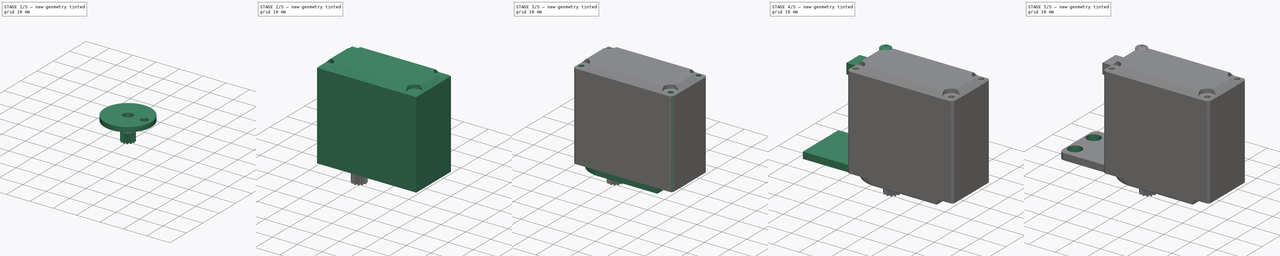
[diagram: build sequence overview — one tinted view per stage of 5, left to right]
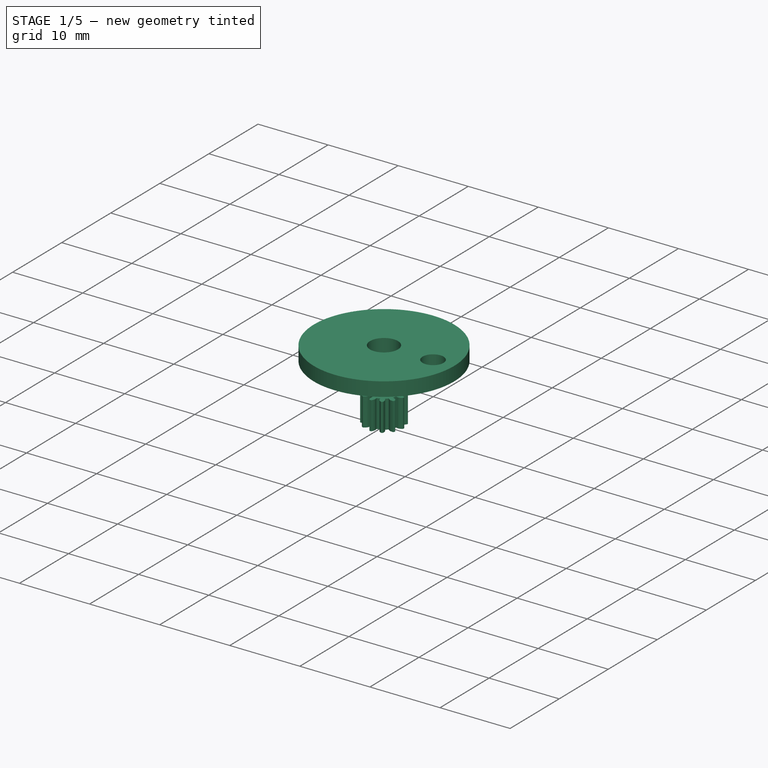
[diagram: stage 1 of 5 — iso view after this stage's code; geometry added in this stage tinted green]
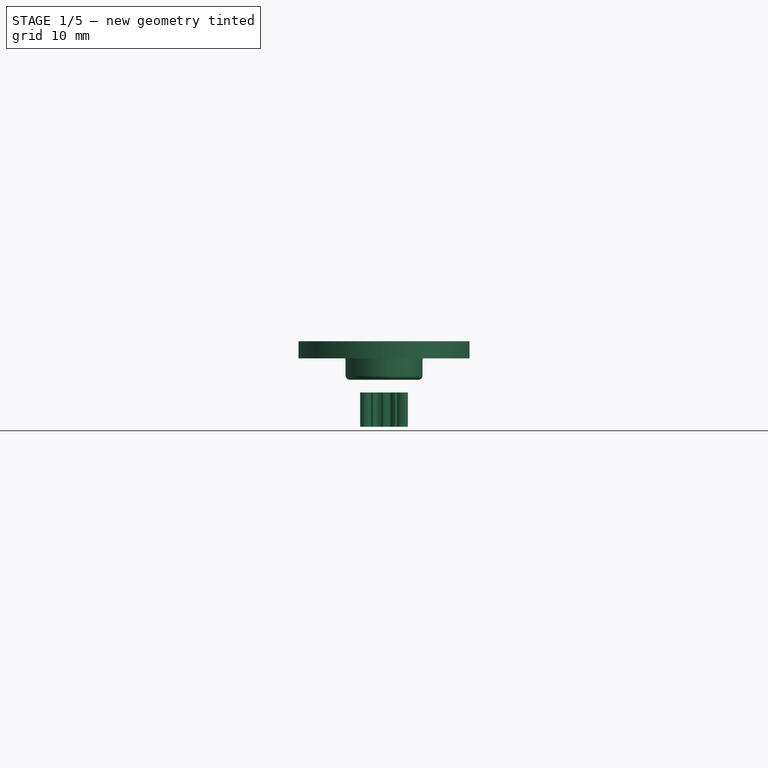
[diagram: stage 1 of 5 — front view after this stage's code; geometry added in this stage tinted green]
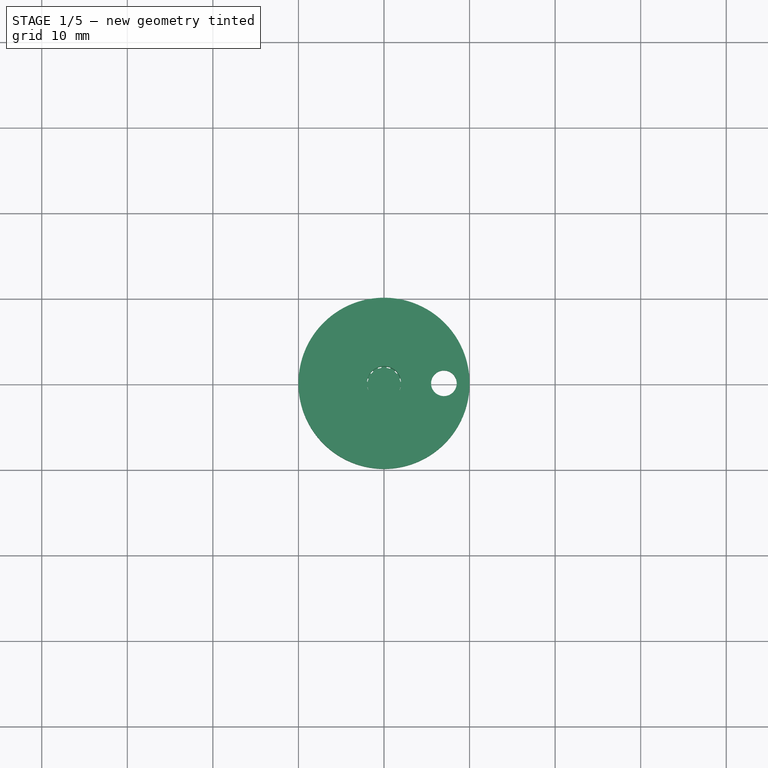
[diagram: stage 1 of 5 — top view after this stage's code; geometry added in this stage tinted green]
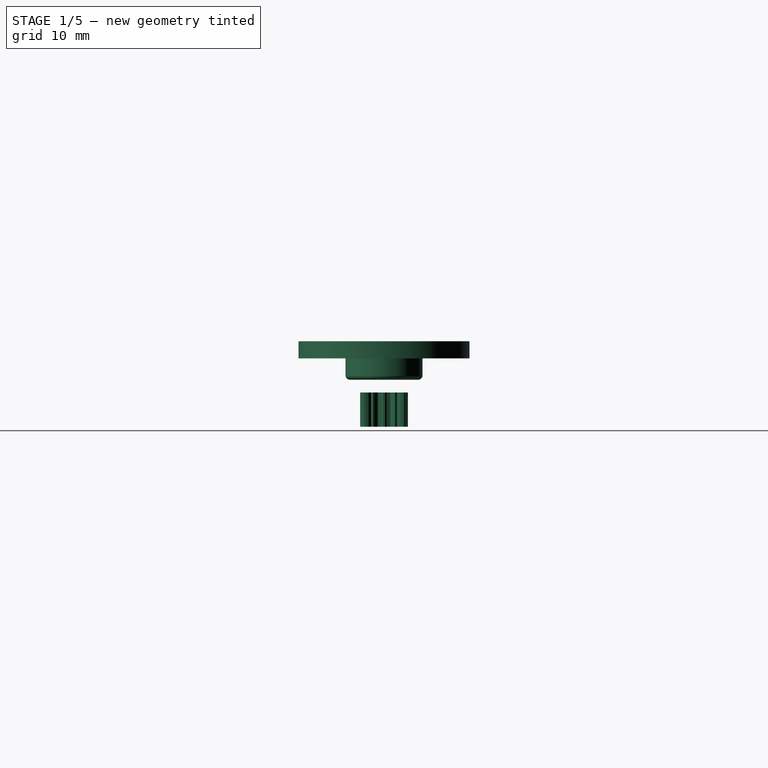
[diagram: stage 1 of 5 — right view after this stage's code; geometry added in this stage tinted green]
FCSTD DOCUMENT  (FreeCAD 0.19R24367 (Git))
Label: Servo
License: All rights reserved
LicenseURL: http://en.wikipedia.org/wiki/All_rights_reserved
objects: Sketcher::SketchObject×15, PartDesign::CoordinateSystem×13, PartDesign::Fillet×12, PartDesign::Pad×10, App::Link×6, PartDesign::Chamfer×5, PartDesign::Pocket×5, App::Part×4, PartDesign::Body×3, App::DocumentObjectGroup×3, Part::FeaturePython×2, PartDesign::SubShapeBinder×2, App::FeaturePython×1, PartDesign::PolarPattern×1, PartDesign::Mirrored×1
note: 101 computed .brp shape members not serialized (recipe doc carries the construction recipe); baked Part::Feature solids carry a one-line shape summary decoded from their .brp

FEATURE [Part::FeaturePython] involutegear  # WARN: FeaturePython — macro-defined, semantics opaque (R4)
  AttacherType = Attacher::AttachEngine3D
  Placement = pos=(0,0,-8) rot=(0,0,1;0rad)
  backlash = 0
  beta = 0
  clearance = 0.15
  da = 5.6
  df = 3.88
  double_helix = false
  dw = 4.8
  head = 0
  height = 4
  module = 0.4
  numpoints = 6
  pressure_angle = 20
  properties_from_tool = false
  reversed_backlash = false
  shift = 0
  simple = false
  teeth = 12
  transverse_pitch = 1.25664
  undercut = false
  version = 0.0.3
FEATURE [PartDesign::CoordinateSystem] LCS_Origin
  AttacherType = Attacher::AttachEngine3D
  MapMode = 2
  Support = -> [X_Axis003]
FEATURE [App::FeaturePython] Variables  # WARN: FeaturePython — macro-defined, semantics opaque (R4)
  Type = App::PropertyContainer
FEATURE [App::DocumentObjectGroup] Constraints
FEATURE [App::DocumentObjectGroup] Configurations
FEATURE [PartDesign::CoordinateSystem] LCS_0003
  AttacherType = Attacher::AttachEngine3D
  MapMode = 2
  Support = -> [X_Axis004]
FEATURE [PartDesign::CoordinateSystem] LCS_0004
  AttacherType = Attacher::AttachEngine3D
  MapMode = 2
  Support = -> [X_Axis005]
FEATURE [Sketcher::SketchObject] Sketch011
  FullyConstrained = true
  MapMode = 5
  Support = -> [XY_Plane005]
  sketch-geometry (1):
    g0: Circle CenterX=0 CenterY=0 CenterZ=0 NormalX=0 NormalY=0 NormalZ=1 AngleXU=0 Radius=10
  constraints (2):
    c: Coincident(g0,g-1)
    c: Diameter(g0) = 20
FEATURE [PartDesign::Pad] Pad008
  Direction = (1,1,1)
  Length = 2
  Length2 = 100
  Profile = -> Sketch011
  Type = 0
FEATURE [Sketcher::SketchObject] Sketch012
  FullyConstrained = true
  MapMode = 5
  Placement = pos=(0,0,0) rot=(1,0,0;3.14159rad)
  Support = -> [Pad008]
  sketch-geometry (1):
    g0: Circle CenterX=0 CenterY=0 CenterZ=0 NormalX=0 NormalY=0 NormalZ=1 AngleXU=0 Radius=4.5
  constraints (2):
    c: Coincident(g0,g-1)
    c: Diameter(g0) = 9
FEATURE [PartDesign::Pad] Pad009
  BaseFeature = -> Pad008
  Direction = (1,1,1)
  Length = 2.5
  Length2 = 100
  Profile = -> Sketch012
  Type = 0
FEATURE [Sketcher::SketchObject] Sketch013
  FullyConstrained = true
  MapMode = 5
  Placement = pos=(0,0,-2.5) rot=(1,0,0;3.14159rad)
  Support = -> [Pad009]
  sketch-geometry (1):
    g0: Circle CenterX=0 CenterY=0 CenterZ=0 NormalX=0 NormalY=0 NormalZ=1 AngleXU=0 Radius=2
  constraints (2):
    c: Coincident(g0,g-1)
    c: Diameter(g0) = 4
FEATURE [PartDesign::Pocket] Pocket003
  BaseFeature = -> Pad009
  Length = 5
  Length2 = 100
  Profile = -> Sketch013
  Type = 1
FEATURE [PartDesign::Chamfer] Chamfer004
  Angle = 45
  Base = -> Pocket003 [Edge8]
  BaseFeature = -> Pocket003
  ChamferType = 0
  FlipDirection = false
  Size = 0.5
  Size2 = 1
  SupportTransform = false
FEATURE [PartDesign::Fillet] Fillet011
  Base = -> Chamfer004 [Edge7]
  BaseFeature = -> Chamfer004
  Radius = 0.5
  SupportTransform = false
FEATURE [Sketcher::SketchObject] Sketch014
  FullyConstrained = true
  MapMode = 5
  Placement = pos=(0,0,0) rot=(1,0,0;3.14159rad)
  Support = -> [Fillet011]
  sketch-geometry (2):
    g0: Circle CenterX=0 CenterY=0 CenterZ=0 NormalX=0 NormalY=0 NormalZ=1 AngleXU=0 Radius=7
    g1: Circle CenterX=7 CenterY=0 CenterZ=0 NormalX=0 NormalY=0 NormalZ=1 AngleXU=0 Radius=1.5
  constraints (5):
    c: Coincident(g0,g-1)
    c: Diameter(g0) = 14
    c: PointOnObject(g1,g0)
    c: Diameter(g1) = 3
    c: PointOnObject(g1,g-1)
FEATURE [PartDesign::Pocket] Pocket004
  BaseFeature = -> Fillet011
  Length = 5
  Length2 = 100
  Profile = -> Sketch014
  Type = 1
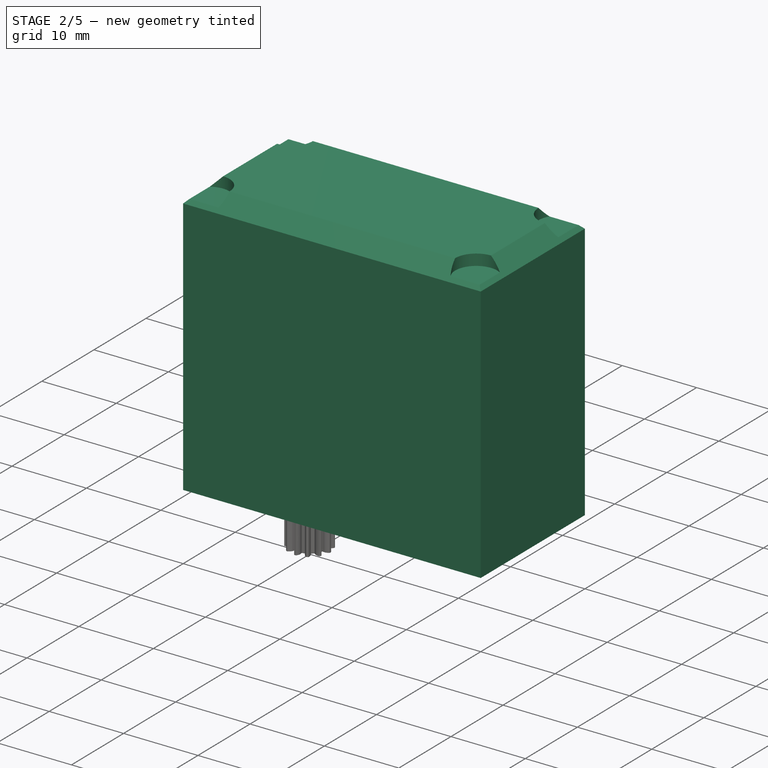
[diagram: stage 2 of 5 — iso view after this stage's code; geometry added in this stage tinted green]
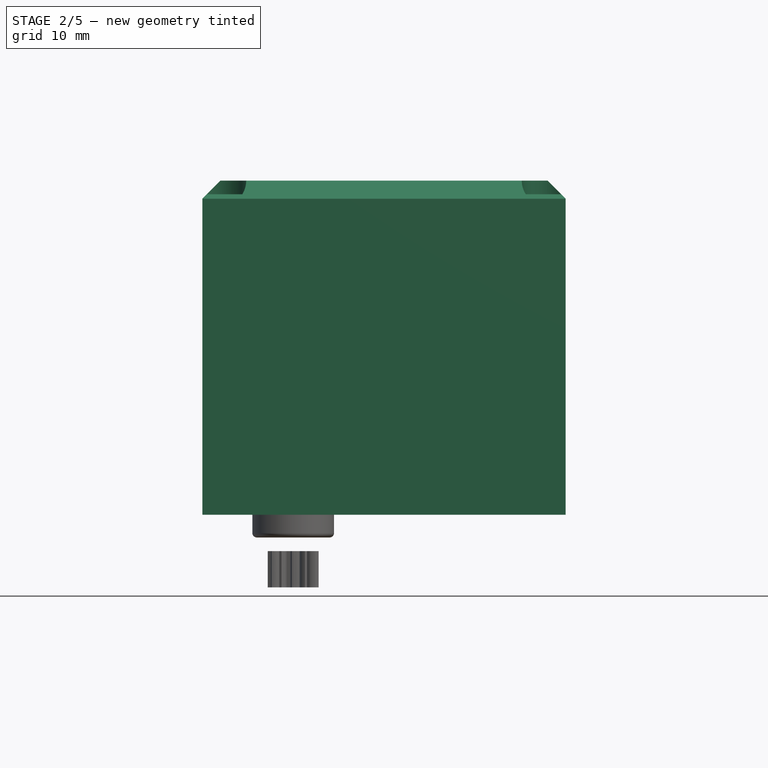
[diagram: stage 2 of 5 — front view after this stage's code; geometry added in this stage tinted green]
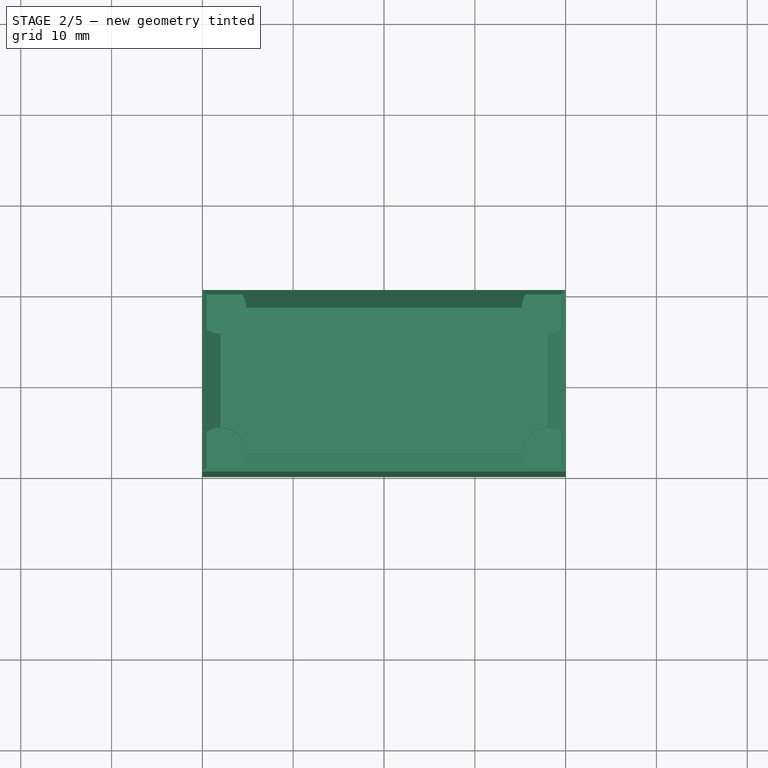
[diagram: stage 2 of 5 — top view after this stage's code; geometry added in this stage tinted green]
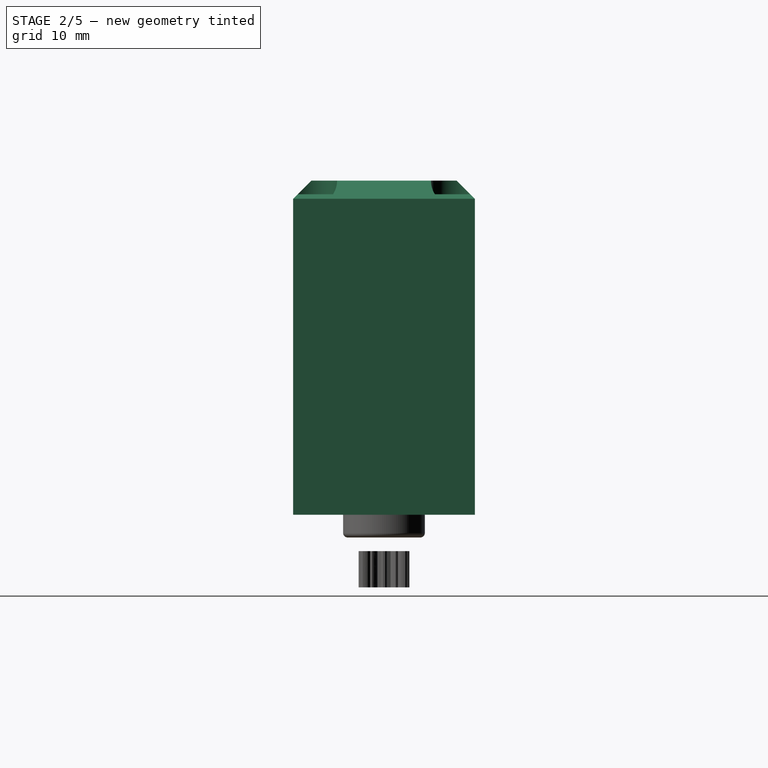
[diagram: stage 2 of 5 — right view after this stage's code; geometry added in this stage tinted green]
FEATURE [PartDesign::CoordinateSystem] LCS_0
  AttacherType = Attacher::AttachEngine3D
  MapMode = 2
  Support = -> [X_Axis]
FEATURE [PartDesign::CoordinateSystem] LCS_0001
  AttacherType = Attacher::AttachEngine3D
  MapMode = 2
  Support = -> [X_Axis001]
FEATURE [Sketcher::SketchObject] Sketch
  FullyConstrained = true
  MapMode = 5
  Support = -> [XY_Plane001]
  sketch-geometry (4):
    g0: LineSegment StartX=-10 StartY=10 StartZ=0 EndX=30 EndY=10 EndZ=0
    g1: LineSegment StartX=30 StartY=10 StartZ=0 EndX=30 EndY=-10 EndZ=0
    g2: LineSegment StartX=30 StartY=-10 StartZ=0 EndX=-10 EndY=-10 EndZ=0
    g3: LineSegment StartX=-10 StartY=-10 StartZ=0 EndX=-10 EndY=10 EndZ=0
  constraints (11):
    c: Coincident(g0,g1)
    c: Coincident(g1,g2)
    c: Coincident(g2,g3)
    c: Coincident(g3,g0)
    c: Horizontal(g0)
    c: Horizontal(g2)
    c: Vertical(g1)
    c: Symmetric(g0,g2,g-1)
    c: Distance(g0) = 40
    c: Distance(g1) = 20
    c: DistanceX(g0,g-1) = 10
FEATURE [PartDesign::Pad] Pad
  Direction = (1,1,1)
  Length = 36.8
  Length2 = 100
  Profile = -> Sketch
  Type = 0
FEATURE [PartDesign::Chamfer] Chamfer
  Angle = 45
  Base = -> Pad [Edge4]
  BaseFeature = -> Pad
  ChamferType = 0
  FlipDirection = false
  Size = 2
  Size2 = 1
  SupportTransform = false
FEATURE [PartDesign::Chamfer] Chamfer001
  Angle = 45
  Base = -> Chamfer [Edge15]
  BaseFeature = -> Chamfer
  ChamferType = 0
  FlipDirection = false
  Size = 2
  Size2 = 1
  SupportTransform = false
FEATURE [PartDesign::Chamfer] Chamfer002
  Angle = 45
  Base = -> Chamfer001 [Edge7]
  BaseFeature = -> Chamfer001
  ChamferType = 0
  FlipDirection = false
  Size = 2
  Size2 = 1
  SupportTransform = false
FEATURE [PartDesign::Chamfer] Chamfer003
  Angle = 45
  Base = -> Chamfer002 [Edge3]
  BaseFeature = -> Chamfer002
  ChamferType = 0
  FlipDirection = false
  Size = 2
  Size2 = 1
  SupportTransform = false
FEATURE [Sketcher::SketchObject] Sketch001
  ExternalGeometry = -> [Chamfer003]
  FullyConstrained = true
  MapMode = 5
  Placement = pos=(0,0,36.8) rot=(0,0,1;0rad)
  Support = -> [Chamfer003]
  sketch-geometry (4):
    g0: Circle CenterX=-8 CenterY=8 CenterZ=0 NormalX=0 NormalY=0 NormalZ=1 AngleXU=0 Radius=2.82843
    g1: Circle CenterX=28 CenterY=8 CenterZ=0 NormalX=0 NormalY=0 NormalZ=1 AngleXU=0 Radius=2.82843
    g2: Circle CenterX=28 CenterY=-8 CenterZ=0 NormalX=0 NormalY=0 NormalZ=1 AngleXU=0 Radius=2.82843
    g3: Circle CenterX=-8 CenterY=-8 CenterZ=0 NormalX=0 NormalY=0 NormalZ=1 AngleXU=0 Radius=2.82843
  constraints (8):
    c: Coincident(g0,g-3)
    c: PointOnObject(g-7,g0)
    c: Coincident(g1,g-6)
    c: Coincident(g2,g-5)
    c: Coincident(g3,g-4)
    c: PointOnObject(g-8,g1)
    c: PointOnObject(g-9,g2)
    c: PointOnObject(g-10,g3)
FEATURE [PartDesign::Pocket] Pocket
  BaseFeature = -> Chamfer003
  Length = 1.5
  Length2 = 100
  Profile = -> Sketch001
  Type = 0
FEATURE [PartDesign::PolarPattern] PolarPattern
  Angle = 360
  Axis = -> Sketch014 [N_Axis]
  BaseFeature = -> Pocket004
  Occurrences = 4
  Originals = -> [Pocket004]
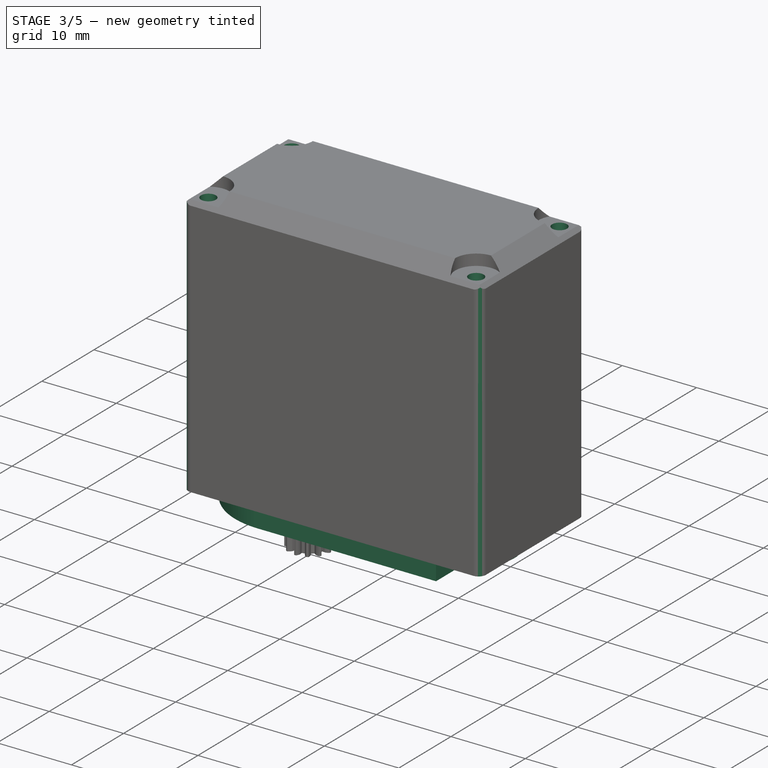
[diagram: stage 3 of 5 — iso view after this stage's code; geometry added in this stage tinted green]
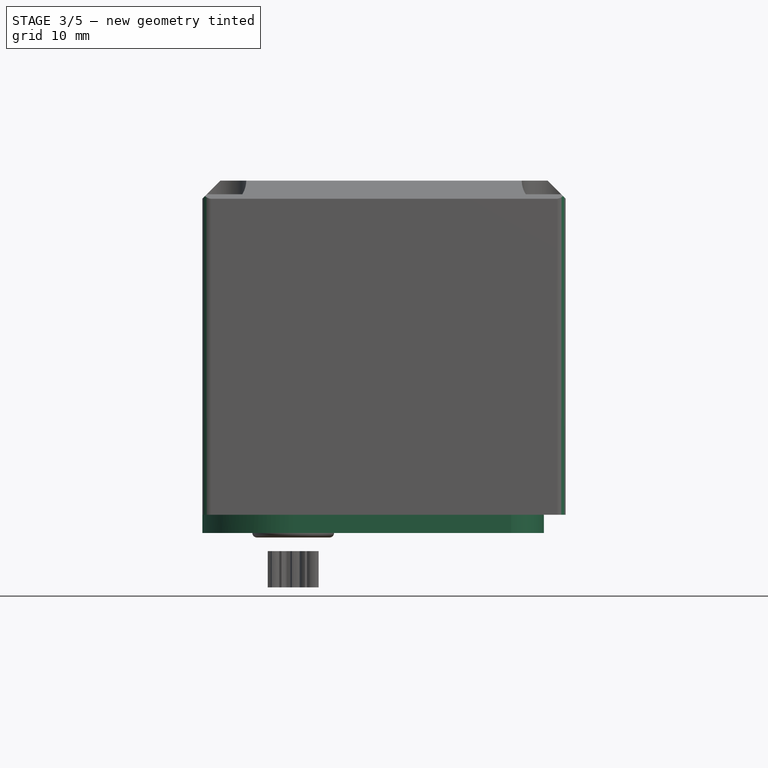
[diagram: stage 3 of 5 — front view after this stage's code; geometry added in this stage tinted green]
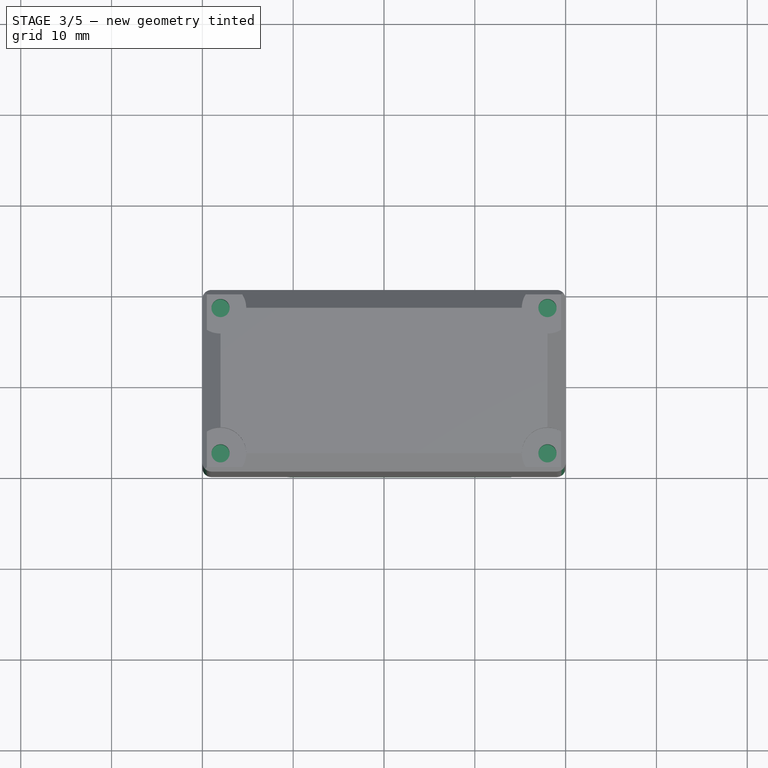
[diagram: stage 3 of 5 — top view after this stage's code; geometry added in this stage tinted green]
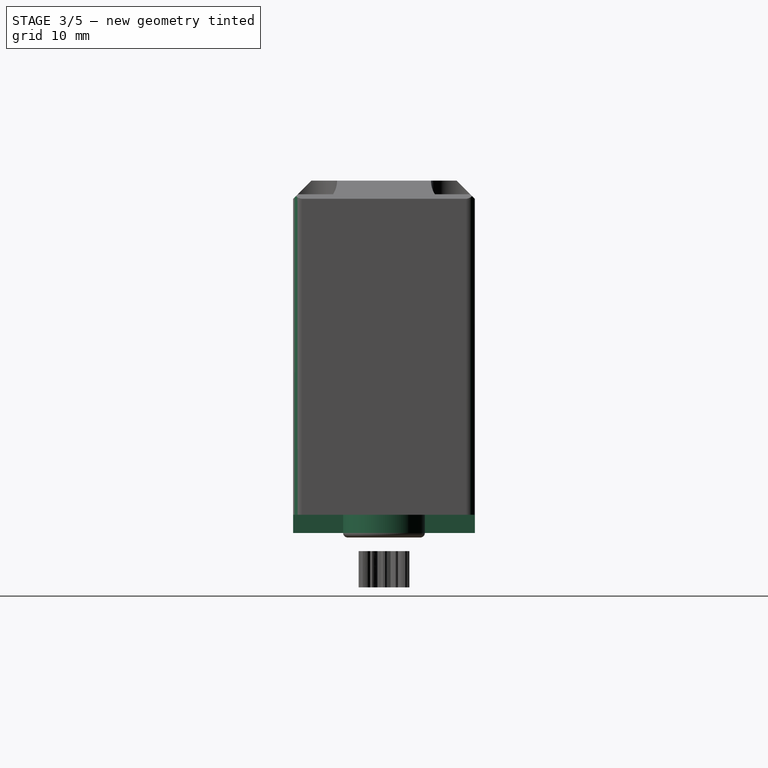
[diagram: stage 3 of 5 — right view after this stage's code; geometry added in this stage tinted green]
FEATURE [Sketcher::SketchObject] Sketch002
  ExternalGeometry = -> [Pocket]
  FullyConstrained = true
  MapMode = 5
  Placement = pos=(0,0,36.8) rot=(0,0,1;0rad)
  Support = -> [Pocket]
  sketch-geometry (8):
    g0: LineSegment StartX=-8 StartY=8 StartZ=0 EndX=28 EndY=8 EndZ=0
    g1: LineSegment StartX=28 StartY=8 StartZ=0 EndX=28 EndY=-8 EndZ=0
    g2: LineSegment StartX=28 StartY=-8 StartZ=0 EndX=-8 EndY=-8 EndZ=0
    g3: LineSegment StartX=-8 StartY=-8 StartZ=0 EndX=-8 EndY=8 EndZ=0
    g4: Circle CenterX=-8 CenterY=8 CenterZ=0 NormalX=0 NormalY=0 NormalZ=1 AngleXU=0 Radius=1
    g5: Circle CenterX=28 CenterY=8 CenterZ=0 NormalX=0 NormalY=0 NormalZ=1 AngleXU=0 Radius=1
    g6: Circle CenterX=-8 CenterY=-8 CenterZ=0 NormalX=0 NormalY=0 NormalZ=1 AngleXU=0 Radius=1
    g7: Circle CenterX=28 CenterY=-8 CenterZ=0 NormalX=0 NormalY=0 NormalZ=1 AngleXU=0 Radius=1
  constraints (19):
    c: Coincident(g0,g1)
    c: Coincident(g1,g2)
    c: Coincident(g2,g3)
    c: Coincident(g3,g0)
    c: Horizontal(g0)
    c: Horizontal(g2)
    c: Vertical(g1)
    c: Symmetric(g0,g2,g-1)
    c: DistanceY(g-3,g0) = 0
    c: DistanceX(g0,g-4) = 0
    c: DistanceX(g-5,g2) = 0
    c: Coincident(g4,g0)
    c: Coincident(g5,g0)
    c: Coincident(g6,g2)
    c: Coincident(g7,g1)
    c: Diameter(g4) = 2
    c: Diameter(g5) = 2
    c: Diameter(g6) = 2
    c: Diameter(g7) = 2
FEATURE [PartDesign::Pocket] Pocket001
  BaseFeature = -> Pocket
  Length = 5
  Length2 = 100
  Profile = -> Sketch002
  Type = 0
FEATURE [Sketcher::SketchObject] Sketch003
  FullyConstrained = true
  MapMode = 5
  Placement = pos=(0,0,0) rot=(1,0,0;3.14159rad)
  Support = -> [Pocket001]
  sketch-geometry (1):
    g0: Circle CenterX=0 CenterY=0 CenterZ=0 NormalX=0 NormalY=0 NormalZ=1 AngleXU=0 Radius=10
  constraints (2):
    c: Coincident(g0,g-1)
    c: Diameter(g0) = 20
FEATURE [PartDesign::Pad] Pad001
  BaseFeature = -> Pocket001
  Direction = (1,1,1)
  Length = 2
  Length2 = 100
  Profile = -> Sketch003
  Refine = true
  Type = 0
FEATURE [Sketcher::SketchObject] Sketch004
  FullyConstrained = true
  MapMode = 5
  Placement = pos=(0,0,0) rot=(1,0,0;3.14159rad)
  Support = -> [Pad001]
  sketch-geometry (4):
    g0: LineSegment StartX=0 StartY=10 StartZ=0 EndX=24 EndY=10 EndZ=0
    g1: LineSegment StartX=24 StartY=10 StartZ=0 EndX=24 EndY=-10 EndZ=0
    g2: LineSegment StartX=24 StartY=-10 StartZ=0 EndX=0 EndY=-10 EndZ=0
    g3: LineSegment StartX=0 StartY=-10 StartZ=0 EndX=0 EndY=10 EndZ=0
  constraints (11):
    c: Coincident(g0,g1)
    c: Coincident(g1,g2)
    c: Coincident(g2,g3)
    c: Coincident(g3,g0)
    c: Horizontal(g0)
    c: Horizontal(g2)
    c: Vertical(g1)
    c: Symmetric(g0,g2,g-1)
    c: Distance(g0) = 24
    c: Distance(g3) = 20
    c: DistanceX(g0,g-1) = 0
FEATURE [PartDesign::Pad] Pad002
  BaseFeature = -> Pad001
  Direction = (1,1,1)
  Length = 2
  Length2 = 100
  Profile = -> Sketch004
  Refine = true
  Type = 0
FEATURE [Sketcher::SketchObject] Sketch005
  ExternalGeometry = -> [Pad002]
  FullyConstrained = true
  MapMode = 5
  Placement = pos=(0,0,0) rot=(1,0,0;3.14159rad)
  Support = -> [Pad002]
  sketch-geometry (2):
    g0: ArcOfCircle CenterX=23 CenterY=0 CenterZ=0 NormalX=0 NormalY=0 NormalZ=1 AngleXU=0 Radius=4.60977 StartAngle=4.93106 EndAngle=7.63531
    g1: LineSegment StartX=24 StartY=4.5 StartZ=0 EndX=24 EndY=-4.5 EndZ=0
  constraints (7):
    c: PointOnObject(g0,g-1)
    c: PointOnObject(g0,g-3)
    c: PointOnObject(g0,g-3)
    c: DistanceY(g0,g0) = 9
    c: DistanceX(g0,g-3) = 1
    c: Coincident(g1,g0)
    c: Coincident(g1,g0)
FEATURE [PartDesign::Pad] Pad003
  BaseFeature = -> Pad002
  Direction = (1,1,1)
  Length = 2
  Length2 = 100
  Profile = -> Sketch005
  Refine = true
  Type = 0
FEATURE [PartDesign::Fillet] Fillet
  Base = -> Pad003 [Edge40]
  BaseFeature = -> Pad003
  Radius = 1
  SupportTransform = false
FEATURE [PartDesign::Fillet] Fillet001
  Base = -> Fillet [Edge44]
  BaseFeature = -> Fillet
  Radius = 1
  SupportTransform = false
FEATURE [PartDesign::Fillet] Fillet002
  Base = -> Fillet001 [Edge53]
  BaseFeature = -> Fillet001
  Radius = 1
  SupportTransform = false
FEATURE [PartDesign::Fillet] Fillet003
  Base = -> Fillet002 [Edge65]
  BaseFeature = -> Fillet002
  Radius = 1
  SupportTransform = false
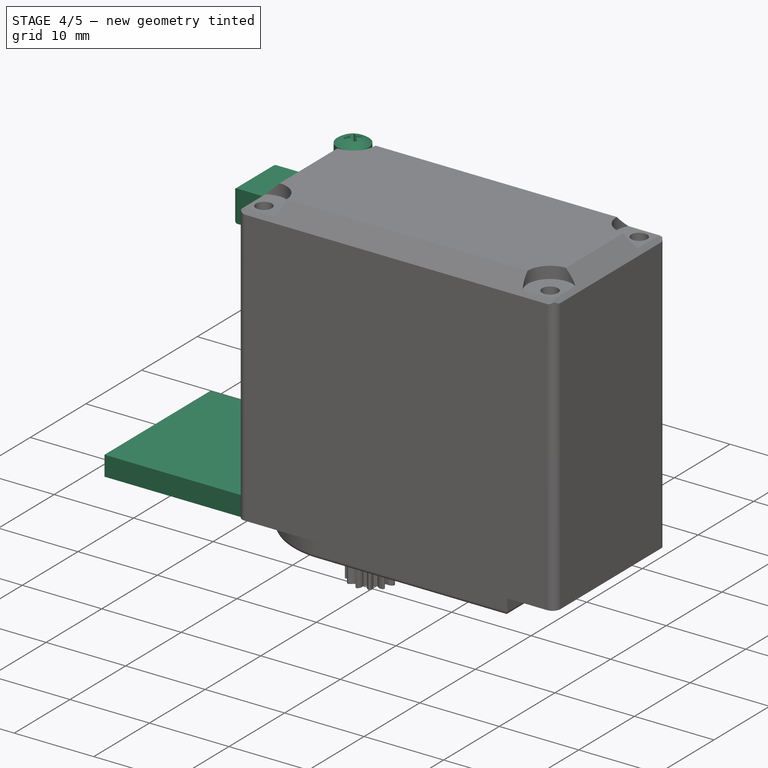
[diagram: stage 4 of 5 — iso view after this stage's code; geometry added in this stage tinted green]
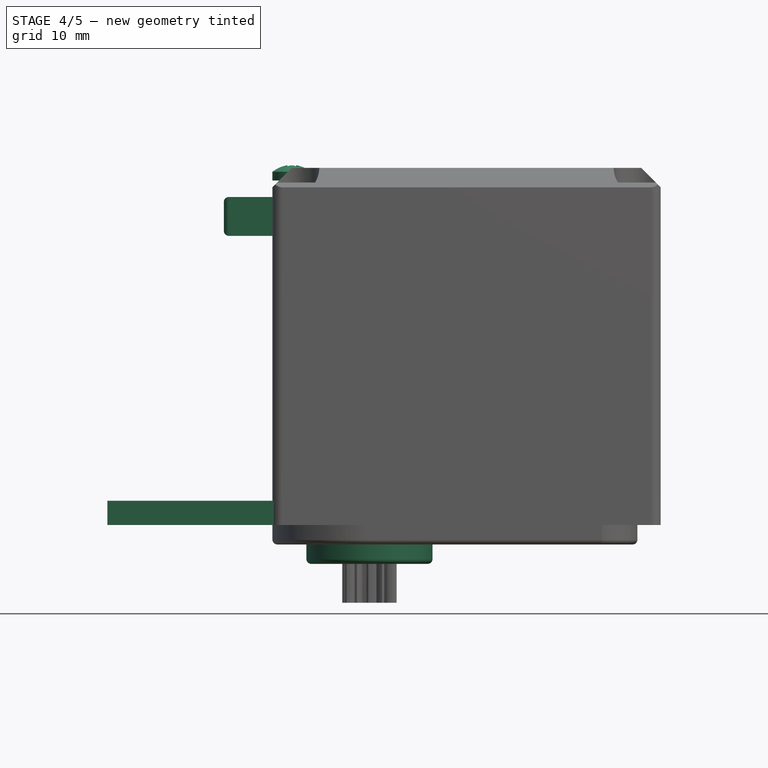
[diagram: stage 4 of 5 — front view after this stage's code; geometry added in this stage tinted green]
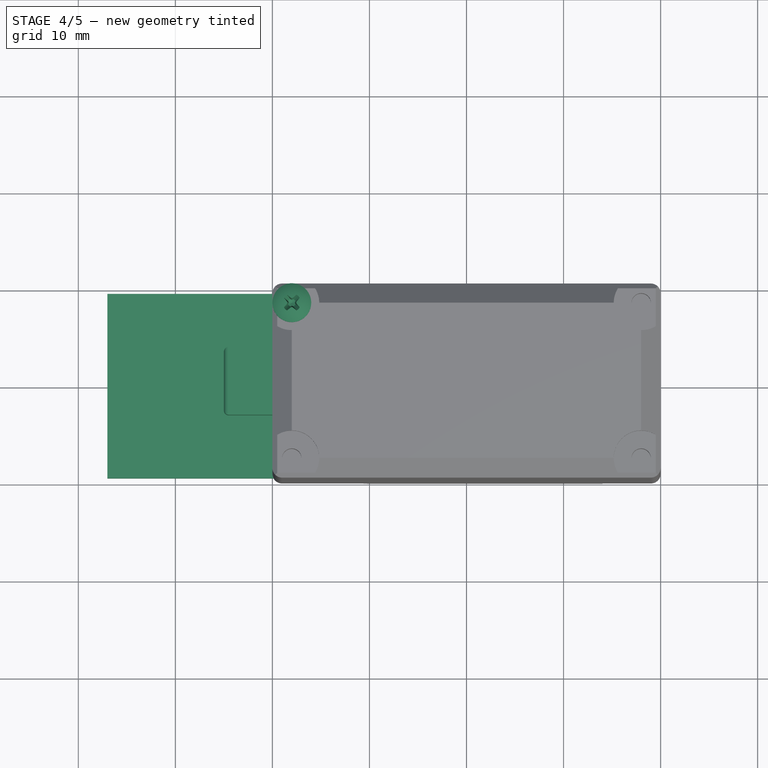
[diagram: stage 4 of 5 — top view after this stage's code; geometry added in this stage tinted green]
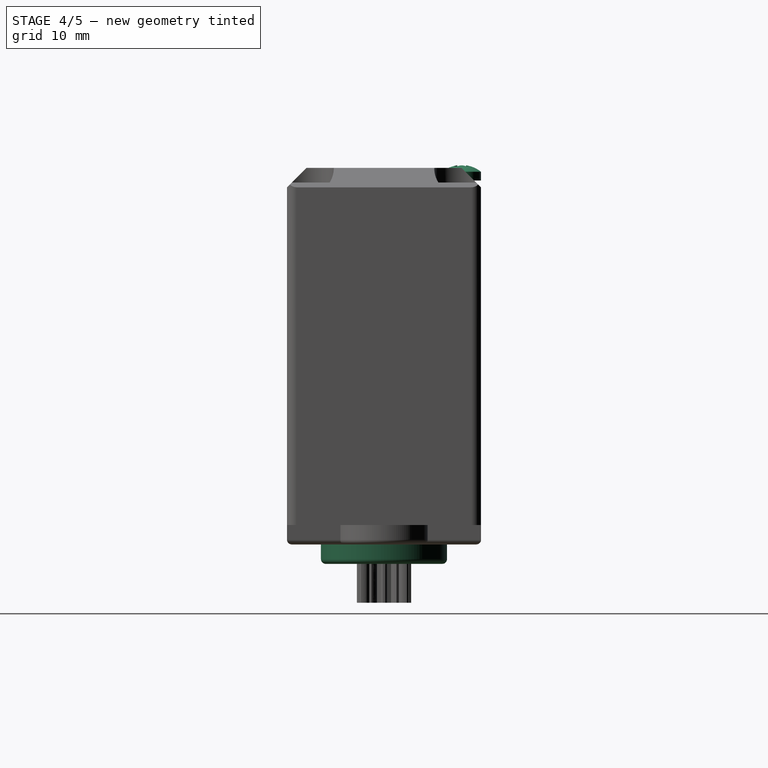
[diagram: stage 4 of 5 — right view after this stage's code; geometry added in this stage tinted green]
FEATURE [PartDesign::Fillet] Fillet004
  Base = -> Fillet003 [Face28]
  BaseFeature = -> Fillet003
  Radius = 0.5
  SupportTransform = false
FEATURE [Sketcher::SketchObject] Sketch006
  FullyConstrained = true
  MapMode = 5
  Placement = pos=(0,0,-2) rot=(1,0,0;3.14159rad)
  Support = -> [Fillet004]
  sketch-geometry (1):
    g0: Circle CenterX=0 CenterY=0 CenterZ=0 NormalX=0 NormalY=0 NormalZ=1 AngleXU=0 Radius=6.5
  constraints (2):
    c: Coincident(g0,g-1)
    c: Diameter(g0) = 13
FEATURE [PartDesign::Pad] Pad004
  BaseFeature = -> Fillet004
  Direction = (1,1,1)
  Length = 2
  Length2 = 100
  Profile = -> Sketch006
  Type = 0
FEATURE [PartDesign::Fillet] Fillet005
  Base = -> Pad004 [Edge96]
  BaseFeature = -> Pad004
  Radius = 0.5
  SupportTransform = false
FEATURE [Part::FeaturePython] Screw  label="M2x20-Screw"  # Fasteners workbench fastener (typed FeaturePython)
  Placement = pos=(-8,8,35.5) rot=(0,0,1;0rad)
  diameter = 2
  invert = false
  length = 9
  lengthCustom = 20
  matchOuter = false
  offset = 0
  thread = false
  type = 34
FEATURE [App::Link] Link  label="M2x20-Screw001"
  LinkPlacement = pos=(28,8,35.5) rot=(0,0,1;0rad)
  LinkedObject = -> Screw
  Placement = pos=(28,8,35.5) rot=(0,0,1;0rad)
FEATURE [App::Link] Link001  label="M2x20-Screw002"
  LinkPlacement = pos=(-8,-8,35.5) rot=(0,0,1;0rad)
  LinkedObject = -> Screw
  Placement = pos=(-8,-8,35.5) rot=(0,0,1;0rad)
FEATURE [App::Link] Link002  label="M2x20-Screw003"
  LinkPlacement = pos=(28,-8.00001,35.5) rot=(0,0,1;0rad)
  LinkedObject = -> Screw
  Placement = pos=(28,-8.00001,35.5) rot=(0,0,1;0rad)
FEATURE [Sketcher::SketchObject] Sketch007
  ExternalGeometry = -> [Fillet005]
  FullyConstrained = true
  MapMode = 5
  Placement = pos=(-10,0,0) rot=(0.57735,-0.57735,-0.57735;2.0944rad)
  Support = -> [Fillet005]
  sketch-geometry (4):
    g0: LineSegment StartX=-3.5 StartY=33.8 StartZ=0 EndX=3.5 EndY=33.8 EndZ=0
    g1: LineSegment StartX=3.5 StartY=33.8 StartZ=0 EndX=3.5 EndY=29.8 EndZ=0
    g2: LineSegment StartX=3.5 StartY=29.8 StartZ=0 EndX=-3.5 EndY=29.8 EndZ=0
    g3: LineSegment StartX=-3.5 StartY=29.8 StartZ=0 EndX=-3.5 EndY=33.8 EndZ=0
  constraints (11):
    c: Coincident(g0,g1)
    c: Coincident(g1,g2)
    c: Coincident(g2,g3)
    c: Coincident(g3,g0)
    c: Horizontal(g2)
    c: Vertical(g1)
    c: Vertical(g3)
    c: Symmetric(g0,g0,g-2)
    c: DistanceY(g2,g-3) = 7
    c: Distance(g1) = 4
    c: Distance(g0) = 7
FEATURE [PartDesign::Pad] Pad005
  BaseFeature = -> Fillet005
  Direction = (1,1,1)
  Length = 5
  Length2 = 100
  Profile = -> Sketch007
  Type = 0
FEATURE [PartDesign::Fillet] Fillet006
  Base = -> Pad005 [Face47]
  BaseFeature = -> Pad005
  Radius = 0.5
  SupportTransform = false
FEATURE [PartDesign::Body] Body
  Group = -> [LCS_0001,Sketch,Pad,Chamfer,Chamfer001,Chamfer002,Chamfer003,Sketch001,Pocket,Sketch002,Pocket001,Sketch003,Pad001,Sketch004,Pad002,Sketch005,Pad003,Fillet,Fillet001,Fillet002,Fillet003,Fillet004,Sketch006,Pad004,Fillet005,Sketch007,Pad005,Fillet006]
  Origin = -> Origin001
  Tip = -> Fillet006
FEATURE [PartDesign::CoordinateSystem] LCS_0002
  AttacherType = Attacher::AttachEngine3D
  MapMode = 2
  Support = -> [X_Axis002]
FEATURE [Sketcher::SketchObject] Sketch008
  FullyConstrained = true
  MapMode = 5
  Support = -> [XY_Plane002]
  sketch-geometry (4):
    g0: LineSegment StartX=-27 StartY=9.5 StartZ=0 EndX=27 EndY=9.5 EndZ=0
    g1: LineSegment StartX=27 StartY=9.5 StartZ=0 EndX=27 EndY=-9.5 EndZ=0
    g2: LineSegment StartX=27 StartY=-9.5 StartZ=0 EndX=-27 EndY=-9.5 EndZ=0
    g3: LineSegment StartX=-27 StartY=-9.5 StartZ=0 EndX=-27 EndY=9.5 EndZ=0
  constraints (11):
    c: Coincident(g0,g1)
    c: Coincident(g1,g2)
    c: Coincident(g2,g3)
    c: Coincident(g3,g0)
    c: Horizontal(g0)
    c: Horizontal(g2)
    c: Vertical(g1)
    c: Vertical(g3)
    c: Symmetric(g0,g1,g-1)
    c: Distance(g0) = 54
    c: Distance(g1) = 19
FEATURE [PartDesign::Pad] Pad006
  Direction = (1,1,1)
  Length = 2.5
  Length2 = 100
  Profile = -> Sketch008
  Type = 0
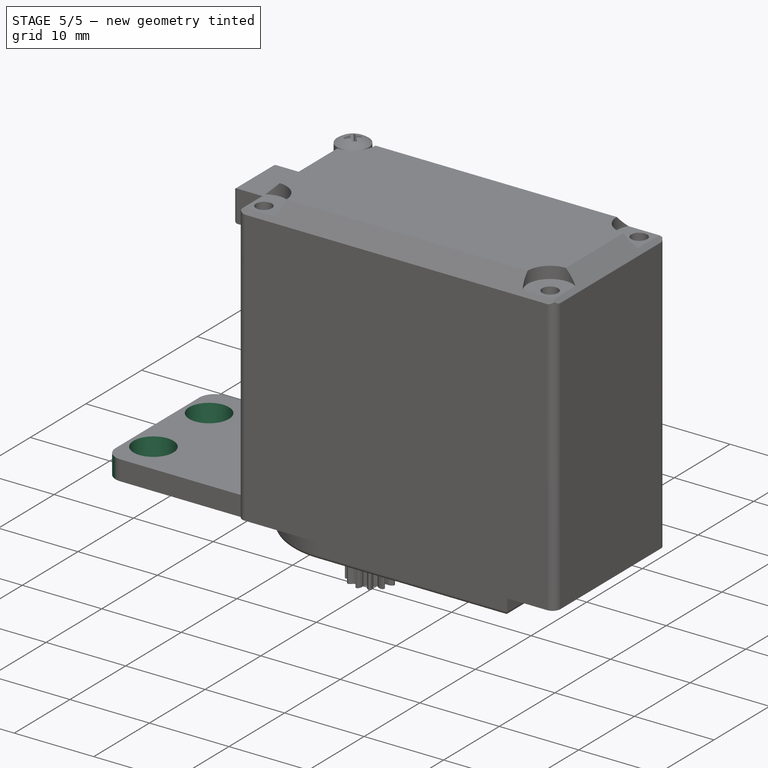
[diagram: stage 5 of 5 — iso view after this stage's code; geometry added in this stage tinted green]
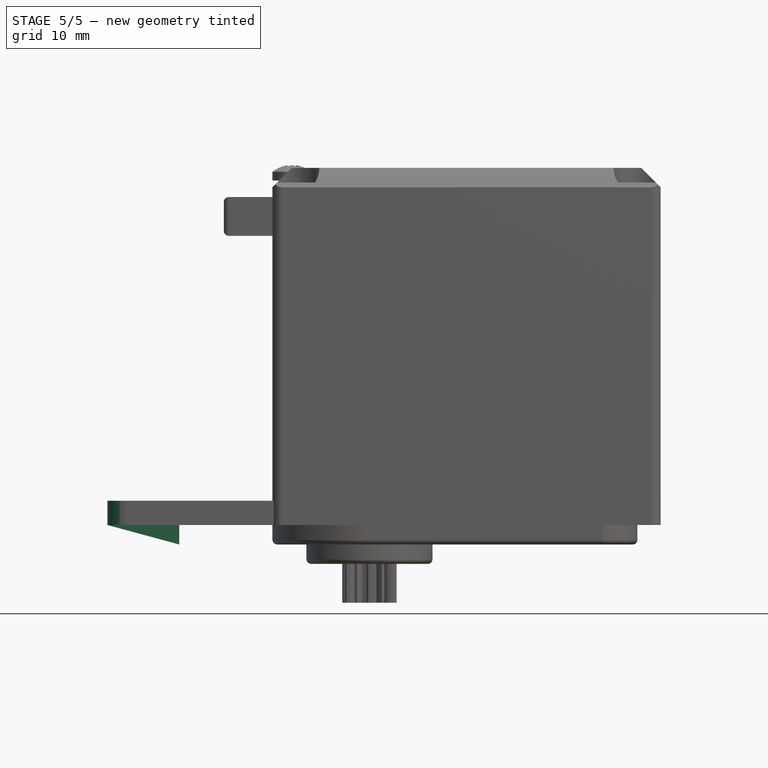
[diagram: stage 5 of 5 — front view after this stage's code; geometry added in this stage tinted green]
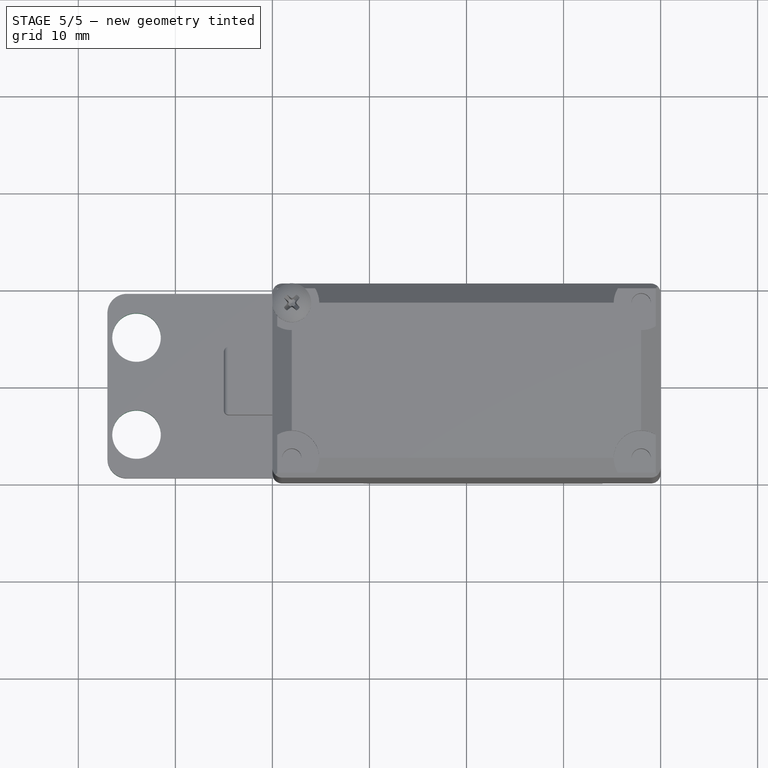
[diagram: stage 5 of 5 — top view after this stage's code; geometry added in this stage tinted green]
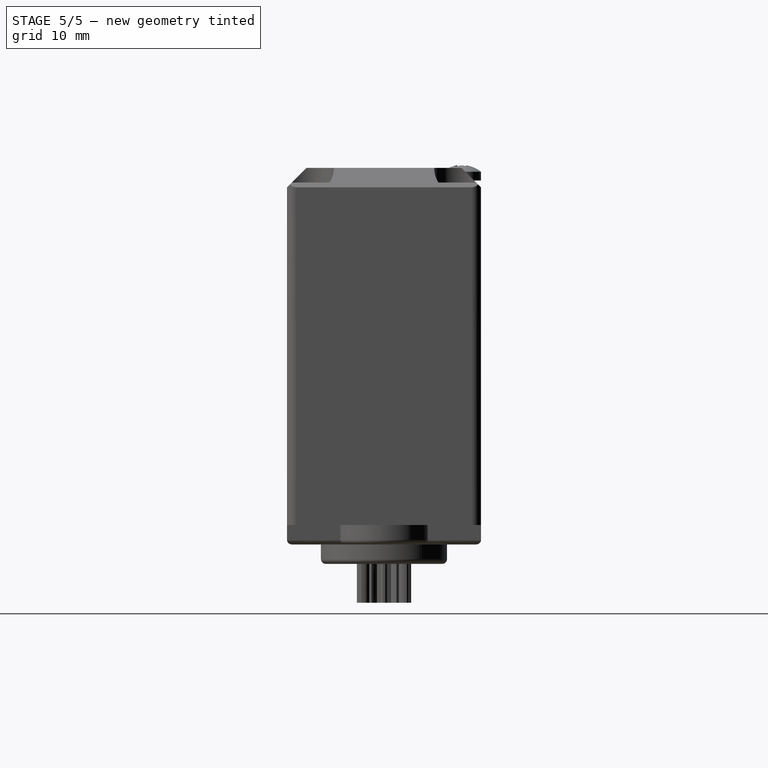
[diagram: stage 5 of 5 — right view after this stage's code; geometry added in this stage tinted green]
FEATURE [Sketcher::SketchObject] Sketch009
  FullyConstrained = true
  MapMode = 5
  Placement = pos=(0,0,2.5) rot=(0,0,1;0rad)
  Support = -> [Pad006]
  sketch-geometry (8):
    g0: LineSegment StartX=-24 StartY=5 StartZ=0 EndX=24 EndY=5 EndZ=0
    g1: LineSegment StartX=24 StartY=5 StartZ=0 EndX=24 EndY=-5 EndZ=0
    g2: LineSegment StartX=24 StartY=-5 StartZ=0 EndX=-24 EndY=-5 EndZ=0
    g3: LineSegment StartX=-24 StartY=-5 StartZ=0 EndX=-24 EndY=5 EndZ=0
    g4: Circle CenterX=-24 CenterY=5 CenterZ=0 NormalX=0 NormalY=0 NormalZ=1 AngleXU=0 Radius=2.5
    g5: Circle CenterX=24 CenterY=5 CenterZ=0 NormalX=0 NormalY=0 NormalZ=1 AngleXU=0 Radius=2.5
    g6: Circle CenterX=24 CenterY=-5 CenterZ=0 NormalX=0 NormalY=0 NormalZ=1 AngleXU=0 Radius=2.5
    g7: Circle CenterX=-24 CenterY=-5 CenterZ=0 NormalX=0 NormalY=0 NormalZ=1 AngleXU=0 Radius=2.5
  constraints (19):
    c: Coincident(g0,g1)
    c: Coincident(g1,g2)
    c: Coincident(g2,g3)
    c: Coincident(g3,g0)
    c: Horizontal(g0)
    c: Horizontal(g2)
    c: Vertical(g1)
    c: Vertical(g3)
    c: Symmetric(g0,g1,g-1)
    c: Distance(g0) = 48
    c: Distance(g1) = 10
    c: Coincident(g4,g0)
    c: Coincident(g5,g0)
    c: Coincident(g6,g1)
    c: Coincident(g7,g2)
    c: Diameter(g4) = 5
    c: Diameter(g5) = 5
    c: Diameter(g6) = 5
    c: Diameter(g7) = 5
FEATURE [PartDesign::Pocket] Pocket002
  BaseFeature = -> Pad006
  Length = 5
  Length2 = 100
  Profile = -> Sketch009
  Type = 1
FEATURE [PartDesign::Fillet] Fillet007
  Base = -> Pocket002 [Edge2]
  BaseFeature = -> Pocket002
  Radius = 2
  SupportTransform = false
FEATURE [PartDesign::Fillet] Fillet008
  Base = -> Fillet007 [Edge3]
  BaseFeature = -> Fillet007
  Radius = 2
  SupportTransform = false
FEATURE [PartDesign::Fillet] Fillet009
  Base = -> Fillet008 [Edge25]
  BaseFeature = -> Fillet008
  Radius = 2
  SupportTransform = false
FEATURE [PartDesign::Fillet] Fillet010
  Base = -> Fillet009 [Edge19]
  BaseFeature = -> Fillet009
  Radius = 2
  SupportTransform = false
FEATURE [Sketcher::SketchObject] Sketch010
  ExternalGeometry = -> [Fillet010]
  FullyConstrained = true
  MapMode = 5
  Placement = pos=(0,0,0) rot=(1,0,0;1.5708rad)
  Support = -> [XZ_Plane002]
  sketch-geometry (3):
    g0: LineSegment StartX=-27 StartY=0 StartZ=0 EndX=-19.6 EndY=0 EndZ=0
    g1: LineSegment StartX=-19.6 StartY=0 StartZ=0 EndX=-19.6 EndY=-2 EndZ=0
    g2: LineSegment StartX=-27 StartY=0 StartZ=0 EndX=-19.6 EndY=-2 EndZ=0
  constraints (9):
    c: PointOnObject(g0,g-1)
    c: Horizontal(g0)
    c: Vertical(g1)
    c: Coincident(g2,g0)
    c: Coincident(g2,g1)
    c: Distance(g1) = 2
    c: Distance(g0) = 7.4
    c: Coincident(g0,g1)
    c: DistanceX(g-3,g0) = 0
FEATURE [PartDesign::Pad] Pad007
  BaseFeature = -> Fillet010
  Direction = (1,1,1)
  Length = 1
  Length2 = 100
  Midplane = true
  Profile = -> Sketch010
  Type = 0
FEATURE [PartDesign::Body] Body_3
  Group = -> [LCS_0004,Sketch011,Pad008,Sketch012,Pad009,Sketch013,Pocket003,Chamfer004,Fillet011,Sketch014,Pocket004,PolarPattern]
  Origin = -> Origin005
  Tip = -> PolarPattern
FEATURE [PartDesign::CoordinateSystem] LCS_Bottom
  AttacherType = Attacher::AttachEngine3D
  MapMode = 45
  Placement = pos=(10,-3e-16,36.8) rot=(0.707107,-0.707107,0;3.14159rad)
  Support = -> [Fillet006]
FEATURE [PartDesign::Mirrored] Mirrored
  BaseFeature = -> Pad007
  MirrorPlane = -> Sketch010 [V_Axis]
  Originals = -> [Pad007]
FEATURE [PartDesign::Body] Body_2  label="Body001"
  Group = -> [LCS_0002,Sketch008,Pad006,Sketch009,Pocket002,Fillet007,Fillet008,Fillet009,Fillet010,Sketch010,Pad007,Mirrored]
  Origin = -> Origin002
  Tip = -> Mirrored
FEATURE [PartDesign::CoordinateSystem] LCS_Bottom001
  AttacherType = Attacher::AttachEngine3D
  MapMode = 45
  Placement = pos=(-6e-16,-1e-16,2.5) rot=(0.707107,-0.707107,0;3.14159rad)
  Support = -> [Mirrored]
FEATURE [PartDesign::CoordinateSystem] LCS_Top
  AttacherType = Attacher::AttachEngine3D
  MapMode = 45
  Placement = pos=(2e-16,-2e-16,0) rot=(-0.707107,0.707107,0;3.14159rad)
  Support = -> [Mirrored]
FEATURE [App::Part] Hang
  Group = -> [Body_2,LCS_Bottom001,LCS_Top]
  Origin = -> Origin006
FEATURE [App::Link] Servo001
  AssemblyType = Part::Link
  AttachedBy = #LCS_0
  AttachedTo = Parent Assembly#LCS_Origin
  LinkedObject = -> Servo
  SolverId = Asm4EE
  expr: Placement = LCS_Origin.Placement * AttachmentOffset * LCS_0.Placement ^ -1
FEATURE [App::Link] Hang001
  AssemblyType = Part::Link
  AttachedBy = #LCS_Bottom001
  AttachedTo = Servo001#LCS_Bottom
  AttachmentOffset = pos=(0,0,29) rot=(0,0,1;0rad)
  LinkPlacement = pos=(10,-1e-16,5.3) rot=(0,0,1;0rad)
  LinkedObject = -> Hang
  Placement = pos=(10,-1e-16,5.3) rot=(0,0,1;0rad)
  SolverId = Asm4EE
  expr: Placement = Servo001.Placement * LCS_Bottom.Placement * AttachmentOffset * LCS_Bottom001.Placement ^ -1
FEATURE [PartDesign::CoordinateSystem] LCS_Gear001
  AttacherType = Attacher::AttachEngine3D
  MapMode = 11
  Placement = pos=(0,0,0) rot=(0,0,1;1.5708rad)
  Support = -> [PolarPattern]
FEATURE [App::Part] ServoWheel
  Group = -> [LCS_0003,Body_3,LCS_Gear001]
  Origin = -> Origin004
FEATURE [PartDesign::CoordinateSystem] LCS_Gear
  AttacherType = Attacher::AttachEngine3D
  MapMode = 45
  Placement = pos=(-5e-16,-5e-16,-8) rot=(0,1,0;3.14159rad)
  Support = -> [involutegear]
FEATURE [App::Part] Servo
  Group = -> [LCS_0,Body,involutegear,Screw,Link,Link001,Link002,LCS_Bottom,LCS_Gear]
  Origin = -> Origin
FEATURE [App::DocumentObjectGroup] Parts
  Group = -> [Servo,ServoWheel,Hang]
FEATURE [App::Link] ServoWheel001
  AssemblyType = Part::Link
  AttachedBy = #LCS_Gear001
  AttachedTo = Servo001#LCS_Gear
  LinkPlacement = pos=(-5e-16,-5e-16,-8) rot=(-0.707107,0.707107,0;3.14159rad)
  LinkedObject = -> ServoWheel
  Placement = pos=(-5e-16,-5e-16,-8) rot=(-0.707107,0.707107,0;3.14159rad)
  SolverId = Asm4EE
  expr: Placement = Servo001.Placement * LCS_Gear.Placement * AttachmentOffset * LCS_Gear001.Placement ^ -1
FEATURE [PartDesign::SubShapeBinder] ShapeBinder
  BindMode = 0
  ClaimChildren = false
  Context = -> Assembly [ShapeBinder.]
  Fuse = false
  MakeFace = false
  PartialLoad = false
  Relative = true
  Support = -> [Hang001[Body_2.Mirrored.Face1]]
  _Version = 2
FEATURE [PartDesign::CoordinateSystem] LCS_1  label="LCS_ServoTop"
  AttacherType = Attacher::AttachEngine3D
  AttachmentOffset = pos=(0,0,0) rot=(0,0,1;3.14159rad)
  MapMode = 5
  Placement = pos=(-5e-16,-5e-16,5.3) rot=(0,-1,0;3.14159rad)
  Support = -> [ShapeBinder]
FEATURE [PartDesign::SubShapeBinder] ShapeBinder001
  BindMode = 0
  ClaimChildren = false
  Context = -> Assembly [ShapeBinder001.]
  Fuse = false
  MakeFace = false
  PartialLoad = false
  Relative = true
  Support = -> [ServoWheel001[Body_3.PolarPattern.Face7]]
  _Version = 2
FEATURE [PartDesign::CoordinateSystem] LCS_PlateTop
  AttacherType = Attacher::AttachEngine3D
  MapMode = 45
  Placement = pos=(0,9e-16,-10) rot=(0,1,0;3.14159rad)
  Support = -> [ShapeBinder001]
FEATURE [App::Part] Assembly  label="AssemblyServo"
  AssemblyType = Part::Link
  Group = -> [LCS_Origin,Variables,Constraints,Configurations,Servo001,Hang001,ServoWheel001,ShapeBinder,LCS_1,ShapeBinder001,LCS_PlateTop]
  Origin = -> Origin003
  Type = Assembly
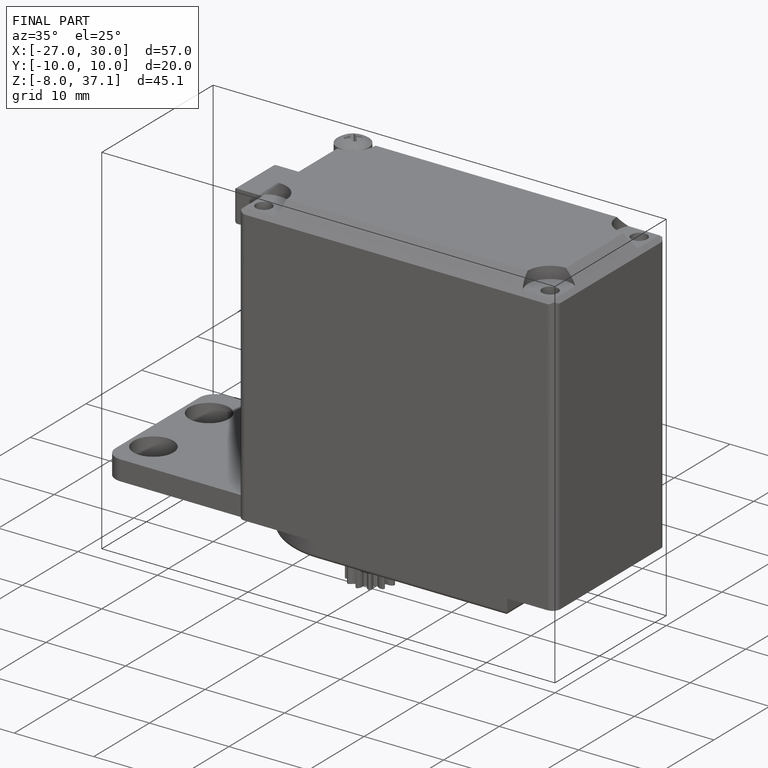
[diagram: finished part — iso view with bounding-box wireframe]
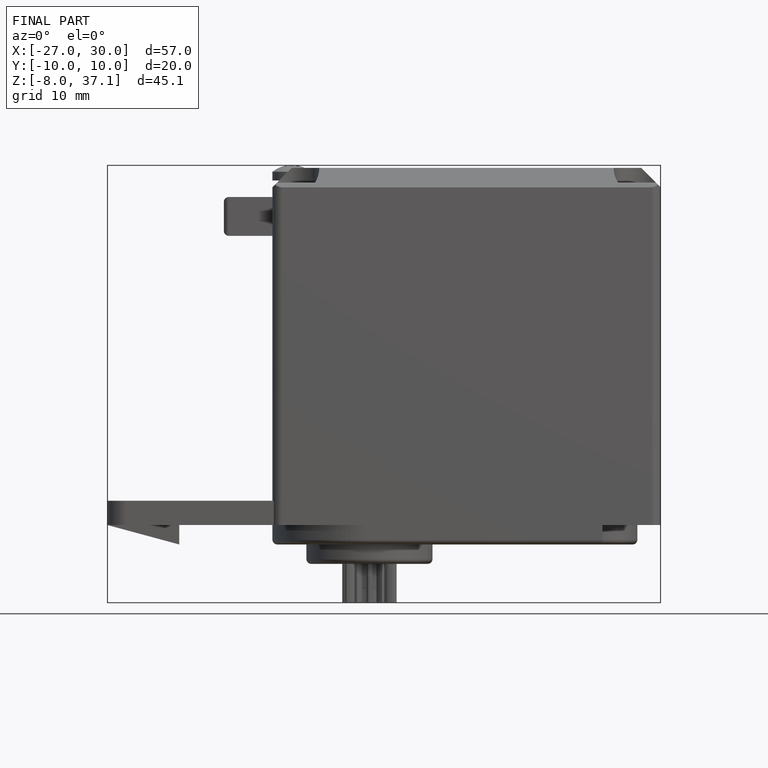
[diagram: finished part — front view with bounding-box wireframe]
